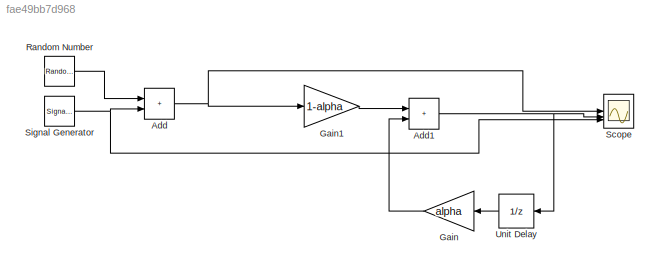
MODEL slx_fae49bb7d968
KIND model
CONFIG AbsTol = auto
CONFIG EnableMultiTasking = off
CONFIG FixedStep = 0.01
CONFIG MaxStep = auto
CONFIG MinStep = auto
CONFIG RelTol = 1e-3
CONFIG SampleTimeConstraint = Unconstrained
CONFIG SolverName = FixedStepAuto
CONFIG StartTime = 0.0
CONFIG StopTime = 20
BLOCK [Sum] Add
  IconShape = rectangular
BLOCK [Sum] Add1
  IconShape = rectangular
BLOCK [Gain] Gain
  Gain = alpha
  NameLocation = top
BLOCK [Gain] Gain1
  Gain = 1-alpha
BLOCK [RandomNumber] Random Number
  SampleTime = 0.1
BLOCK [Scope] Scope
  Floating = off
  NumInputPorts = 3
  ScopeSpecificationString = Simulink.scopes.TimeScopeBlockCfg('CurrentConfiguration', extmgr.ConfigurationSet(extmgr.Configuration('Core','General UI',true),extmgr.Configuration('Core','Source UI',true),extmgr.Configuration('Sources','WiredSimulink',true),extmgr.Configuration('Visuals','Time Domain',true,'SerializedDisplays',{struct('MinYLimReal','-28.48416','MaxYLimReal','27.6299','YLabelReal','','MinYLimMag','0.00000','Max...<+1495ch>
BLOCK [SignalGenerator] Signal Generator
  Amplitude = 20
  Frequency = 0.1
  WaveForm = square
BLOCK [UnitDelay] Unit Delay
  HasFrameUpgradeWarning = on
  SampleTime = -1
NET Add1:1 -> Scope:2, Unit Delay:1
NET Add:1 -> Gain1:1, Scope:1
LINE Gain1:1 -> Add1:1
LINE Gain:1 -> Add1:2
LINE Random Number:1 -> Add:1
NET Signal Generator:1 -> Add:2, Scope:3
LINE Unit Delay:1 -> Gain:1
note: NET lines group one-source signal fan-out (src -> all destinations, sorted); 1:1 wires keep LINE
